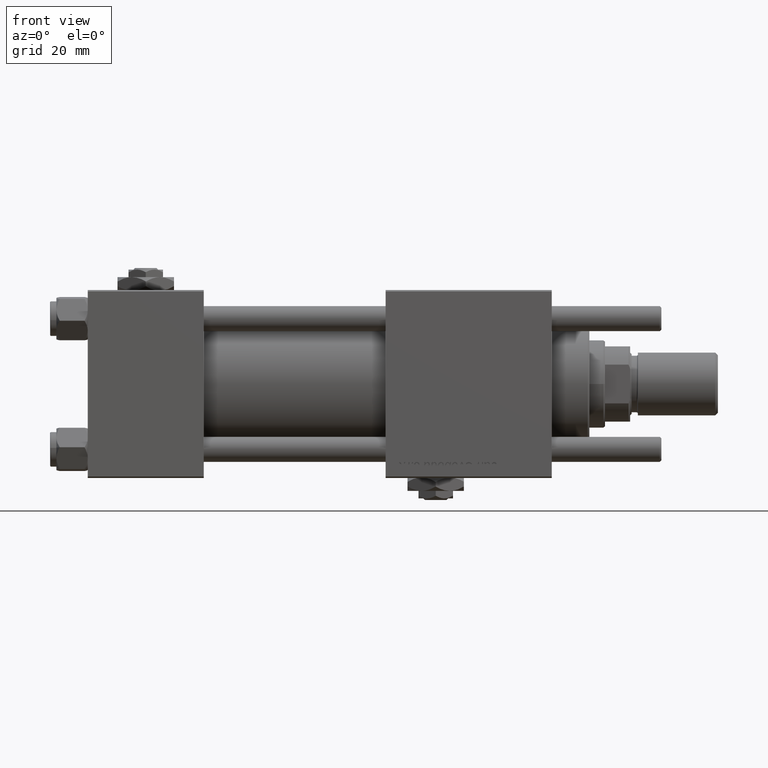
[diagram: clean part render]
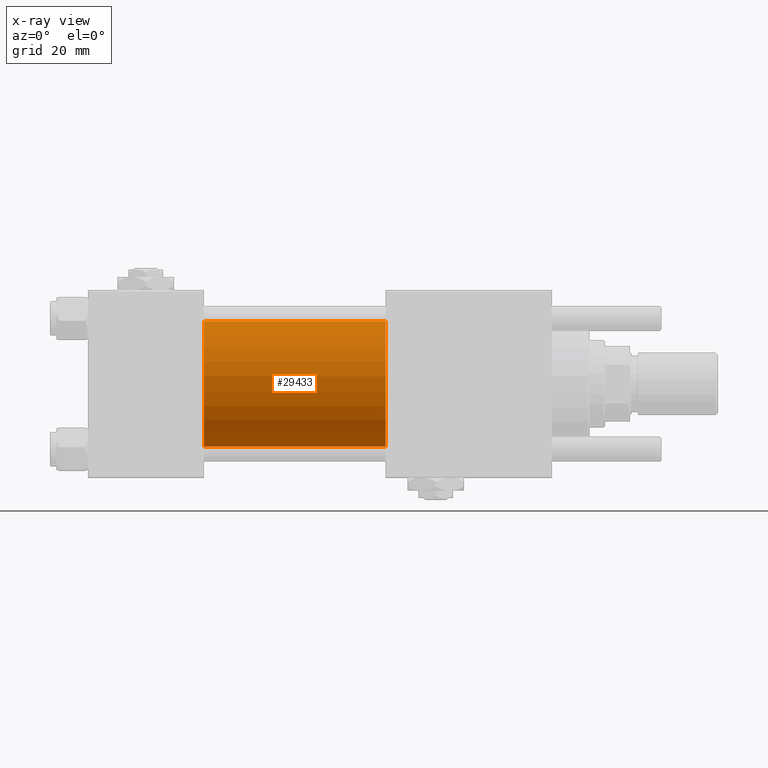
[diagram: x-ray — body ghosted, one internal face saturated and labeled with its STEP entity id]
A machine part, front view, then the same camera in x-ray: the body is ghosted and one INTERNAL B-rep face — a face not visible from any outside direction — is saturated and labeled: STEP entity #29433.
In plain terms, the highlighted cylindrical surface (partial cylindrical patch) has radius 20 mm, axis along (-1, -0, -0).
Its self-contained STEP definition (entity closure, byte-faithful):
#4510 = EDGE_CURVE ( 'NONE', #15021, #18431, #17334, .T. ) ;
#8694 = DIRECTION ( 'NONE',  ( -1.000000000000000000, -0.000000000000000000, -0.000000000000000000 ) ) ;
#9241 = DIRECTION ( 'NONE',  ( -1.000000000000000000, -0.000000000000000000, -0.000000000000000000 ) ) ;
#9607 = EDGE_CURVE ( 'NONE', #23461, #18431, #29446, .T. ) ;
#10967 = ORIENTED_EDGE ( 'NONE', *, *, #18080, .T. ) ;
#12563 = DIRECTION ( 'NONE',  ( 0.000000000000000000, 0.000000000000000000, -1.000000000000000000 ) ) ;
#15021 = VERTEX_POINT ( 'NONE', #28673 ) ;
#17057 = CARTESIAN_POINT ( 'NONE',  ( 37.00000000000000000, -2.602085213965210642E-15, 0.000000000000000000 ) ) ;
#17334 = LINE ( 'NONE', #36553, #39042 ) ;
#18080 = EDGE_CURVE ( 'NONE', #45862, #15021, #31689, .T. ) ;
#18309 = DIRECTION ( 'NONE',  ( -1.000000000000000000, -0.000000000000000000, -0.000000000000000000 ) ) ;
#18431 = VERTEX_POINT ( 'NONE', #44143 ) ;
#19042 = CARTESIAN_POINT ( 'NONE',  ( 95.00000000000000000, -2.602085213965210642E-15, 0.000000000000000000 ) ) ;
#19876 = AXIS2_PLACEMENT_3D ( 'NONE', #17057, #48597, #12563 ) ;
#21547 = ORIENTED_EDGE ( 'NONE', *, *, #4510, .T. ) ;
#22474 = DIRECTION ( 'NONE',  ( 0.000000000000000000, 0.000000000000000000, 1.000000000000000000 ) ) ;
#23461 = VERTEX_POINT ( 'NONE', #40386 ) ;
#28673 = CARTESIAN_POINT ( 'NONE',  ( 95.00000000000000000, -1.527916156705046464E-16, -20.00000000000000000 ) ) ;
#29433 = ADVANCED_FACE ( 'NONE', ( #58813 ), #31518, .F. ) ;
#29446 = CIRCLE ( 'NONE', #19876, 20.00000000000000000 ) ;
#30328 = VECTOR ( 'NONE', #18309, 1000.000000000000000 ) ;
#31518 = CYLINDRICAL_SURFACE ( 'NONE', #32920, 20.00000000000000000 ) ;
#31689 = CIRCLE ( 'NONE', #34537, 20.00000000000000000 ) ;
#32095 = ORIENTED_EDGE ( 'NONE', *, *, #49253, .F. ) ;
#32920 = AXIS2_PLACEMENT_3D ( 'NONE', #49824, #8694, #22474 ) ;
#34537 = AXIS2_PLACEMENT_3D ( 'NONE', #19042, #38228, #37933 ) ;
#34552 = CARTESIAN_POINT ( 'NONE',  ( 95.00000000000000000, -2.602085213965210642E-15, 20.00000000000000000 ) ) ;
#36553 = CARTESIAN_POINT ( 'NONE',  ( 95.00000000000000000, -1.527916156705046464E-16, -20.00000000000000000 ) ) ;
#37933 = DIRECTION ( 'NONE',  ( 0.000000000000000000, 0.000000000000000000, -1.000000000000000000 ) ) ;
#38228 = DIRECTION ( 'NONE',  ( 1.000000000000000000, 0.000000000000000000, 0.000000000000000000 ) ) ;
#39042 = VECTOR ( 'NONE', #9241, 1000.000000000000000 ) ;
#40386 = CARTESIAN_POINT ( 'NONE',  ( 37.00000000000000000, -2.602085213965210642E-15, 20.00000000000000000 ) ) ;
#44143 = CARTESIAN_POINT ( 'NONE',  ( 37.00000000000000000, -1.527916156705046464E-16, -20.00000000000000000 ) ) ;
#44450 = CARTESIAN_POINT ( 'NONE',  ( 95.00000000000000000, -2.602085213965210642E-15, 20.00000000000000000 ) ) ;
#45122 = ORIENTED_EDGE ( 'NONE', *, *, #9607, .F. ) ;
#45862 = VERTEX_POINT ( 'NONE', #34552 ) ;
#48597 = DIRECTION ( 'NONE',  ( 1.000000000000000000, 0.000000000000000000, 0.000000000000000000 ) ) ;
#49253 = EDGE_CURVE ( 'NONE', #45862, #23461, #53462, .T. ) ;
#49824 = CARTESIAN_POINT ( 'NONE',  ( 95.00000000000000000, -2.602085213965210642E-15, 0.000000000000000000 ) ) ;
#53462 = LINE ( 'NONE', #44450, #30328 ) ;
#56284 = EDGE_LOOP ( 'NONE', ( #10967, #21547, #45122, #32095 ) ) ;
#58813 = FACE_OUTER_BOUND ( 'NONE', #56284, .T. ) ;